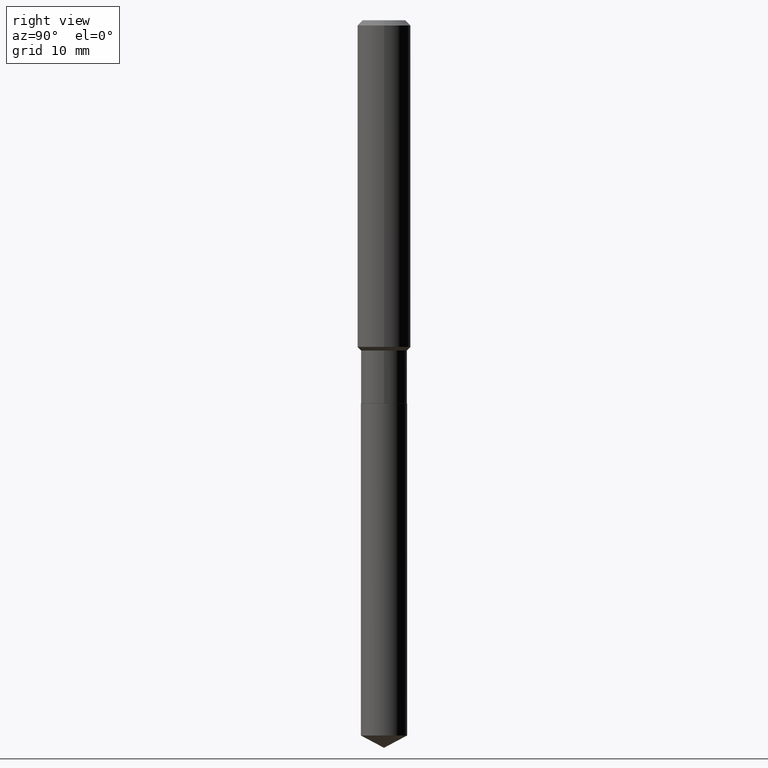
[diagram: clean part render]
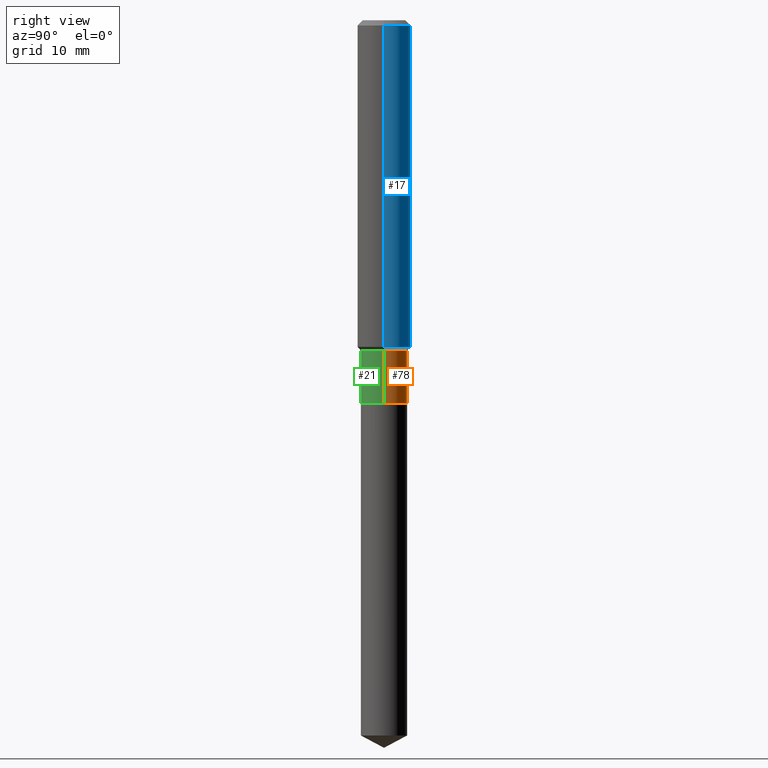
[diagram: same view with three faces highlighted in distinct colors, each labeled with its STEP entity id]
A machine part, right view with three faces highlighted in distinct colors.
Their STEP definitions:

[orange] entity #78 — the highlighted cylindrical surface (edge-blend (fillet) strip) has radius 2.5997 mm, axis along (-0, 0, 1).
#7 = CARTESIAN_POINT ( 'NONE',  ( 4.157786064275969447E-29, -5.936216572301116605E-15, -1.700200000000000156 ) ) ;
#11 = CARTESIAN_POINT ( 'NONE',  ( 0.1023499999999999827, -7.147062300611892976E-16, 4.990766930027139796E-30 ) ) ;
#38 = CIRCLE ( 'NONE', #410, 0.1023499999999999688 ) ;
#39 = VERTEX_POINT ( 'NONE', #246 ) ;
#43 = DIRECTION ( 'NONE',  ( -2.445468806185136877E-29, 3.491481338843145188E-15, 1.000000000000000000 ) ) ;
#48 = DIRECTION ( 'NONE',  ( 1.000000000000000000, -6.982962677686266711E-15, 4.876176775795936353E-29 ) ) ;
#78 = ADVANCED_FACE ( 'NONE', ( #418 ), #381, .T. ) ;
#96 = EDGE_CURVE ( 'NONE', #328, #334, #207, .T. ) ;
#129 = EDGE_CURVE ( 'NONE', #328, #408, #484, .T. ) ;
#136 = DIRECTION ( 'NONE',  ( -2.445468806185136597E-29, 3.491481338843145583E-15, 1.000000000000000000 ) ) ;
#150 = CARTESIAN_POINT ( 'NONE',  ( 0.1023499999999999688, -5.830773835868049900E-15, -1.465300000000000047 ) ) ;
#152 = VECTOR ( 'NONE', #311, 39.37007874015748143 ) ;
#156 = ORIENTED_EDGE ( 'NONE', *, *, #194, .F. ) ;
#165 = LINE ( 'NONE', #419, #286 ) ;
#166 = AXIS2_PLACEMENT_3D ( 'NONE', #7, #464, #412 ) ;
#194 = EDGE_CURVE ( 'NONE', #334, #39, #38, .T. ) ;
#203 = CARTESIAN_POINT ( 'NONE',  ( 0.000000000000000000, 0.000000000000000000, 0.000000000000000000 ) ) ;
#207 = LINE ( 'NONE', #11, #152 ) ;
#236 = ORIENTED_EDGE ( 'NONE', *, *, #438, .T. ) ;
#246 = CARTESIAN_POINT ( 'NONE',  ( -0.1023499999999999688, -4.798901599003526335E-15, -1.465300000000000047 ) ) ;
#286 = VECTOR ( 'NONE', #43, 39.37007874015748143 ) ;
#311 = DIRECTION ( 'NONE',  ( -2.445468806185136877E-29, 3.491481338843145188E-15, 1.000000000000000000 ) ) ;
#315 = DIRECTION ( 'NONE',  ( -2.445468806185136597E-29, 3.491481338843145583E-15, 1.000000000000000000 ) ) ;
#328 = VERTEX_POINT ( 'NONE', #405 ) ;
#334 = VERTEX_POINT ( 'NONE', #150 ) ;
#355 = EDGE_LOOP ( 'NONE', ( #440, #236, #156, #488 ) ) ;
#381 = CYLINDRICAL_SURFACE ( 'NONE', #433, 0.1023499999999999827 ) ;
#405 = CARTESIAN_POINT ( 'NONE',  ( 0.1023499999999999965, -6.650922802362306198E-15, -1.700200000000000156 ) ) ;
#408 = VERTEX_POINT ( 'NONE', #467 ) ;
#410 = AXIS2_PLACEMENT_3D ( 'NONE', #429, #136, #431 ) ;
#412 = DIRECTION ( 'NONE',  ( 1.000000000000000000, -6.982962677686270655E-15, 0.000000000000000000 ) ) ;
#418 = FACE_OUTER_BOUND ( 'NONE', #355, .T. ) ;
#419 = CARTESIAN_POINT ( 'NONE',  ( -0.1023499999999999827, 7.272404900504624170E-16, -5.034530064875895945E-30 ) ) ;
#429 = CARTESIAN_POINT ( 'NONE',  ( 3.583345441703080840E-29, -5.116067605806861096E-15, -1.465300000000000047 ) ) ;
#431 = DIRECTION ( 'NONE',  ( 1.000000000000000000, -6.982962677686262766E-15, 0.000000000000000000 ) ) ;
#433 = AXIS2_PLACEMENT_3D ( 'NONE', #203, #315, #48 ) ;
#438 = EDGE_CURVE ( 'NONE', #408, #39, #165, .T. ) ;
#440 = ORIENTED_EDGE ( 'NONE', *, *, #129, .T. ) ;
#464 = DIRECTION ( 'NONE',  ( -2.445468806185136597E-29, 3.491481338843145583E-15, 1.000000000000000000 ) ) ;
#467 = CARTESIAN_POINT ( 'NONE',  ( -0.1023499999999999965, -4.798901599003526335E-15, -1.700200000000000156 ) ) ;
#484 = CIRCLE ( 'NONE', #166, 0.1023499999999999965 ) ;
#488 = ORIENTED_EDGE ( 'NONE', *, *, #96, .F. ) ;

[blue] entity #17 — the highlighted cylindrical surface (edge-blend (fillet) strip) has radius 2.9997 mm, axis along (-0, 0, 1).
#9 = CARTESIAN_POINT ( 'NONE',  ( 0.1180999999999999966, -9.071566814582237199E-16, -0.02362000000000014088 ) ) ;
#17 = ADVANCED_FACE ( 'NONE', ( #379 ), #455, .T. ) ;
#34 = EDGE_CURVE ( 'NONE', #344, #235, #471, .T. ) ;
#37 = ORIENTED_EDGE ( 'NONE', *, *, #50, .F. ) ;
#50 = EDGE_CURVE ( 'NONE', #344, #430, #53, .T. ) ;
#53 = LINE ( 'NONE', #338, #85 ) ;
#83 = DIRECTION ( 'NONE',  ( 1.000000000000000000, -6.982962677686266711E-15, 4.876176775795936353E-29 ) ) ;
#85 = VECTOR ( 'NONE', #86, 39.37007874015748143 ) ;
#86 = DIRECTION ( 'NONE',  ( -2.445468806185136877E-29, 3.491481338843145188E-15, 1.000000000000000000 ) ) ;
#93 = DIRECTION ( 'NONE',  ( 1.000000000000000000, -6.982962677686263555E-15, 0.000000000000000000 ) ) ;
#95 = VECTOR ( 'NONE', #348, 39.37007874015748143 ) ;
#102 = AXIS2_PLACEMENT_3D ( 'NONE', #423, #168, #83 ) ;
#104 = CARTESIAN_POINT ( 'NONE',  ( 5.776197320209327532E-31, -8.246878922347559293E-17, -0.02362000000000014088 ) ) ;
#148 = CARTESIAN_POINT ( 'NONE',  ( -0.1180999999999999966, -1.732621811039098637E-15, -0.02362000000000014088 ) ) ;
#167 = AXIS2_PLACEMENT_3D ( 'NONE', #271, #276, #93 ) ;
#168 = DIRECTION ( 'NONE',  ( -2.445468806185136597E-29, 3.491481338843145583E-15, 1.000000000000000000 ) ) ;
#171 = CARTESIAN_POINT ( 'NONE',  ( -0.1181000000000000799, 8.391509709326788873E-16, -5.809262341591047988E-30 ) ) ;
#211 = DIRECTION ( 'NONE',  ( -2.445468806185136597E-29, 3.491481338843145583E-15, 1.000000000000000000 ) ) ;
#235 = VERTEX_POINT ( 'NONE', #256 ) ;
#256 = CARTESIAN_POINT ( 'NONE',  ( -0.1181000000000001632, -4.221925803787401987E-15, -1.449549999999999894 ) ) ;
#266 = ORIENTED_EDGE ( 'NONE', *, *, #34, .T. ) ;
#271 = CARTESIAN_POINT ( 'NONE',  ( 3.544829308005664880E-29, -5.061076774720080972E-15, -1.449549999999999894 ) ) ;
#276 = DIRECTION ( 'NONE',  ( -2.445468806185136597E-29, 3.491481338843145583E-15, 1.000000000000000000 ) ) ;
#290 = CARTESIAN_POINT ( 'NONE',  ( 0.1181000000000001632, -5.885764666954829235E-15, -1.449549999999999894 ) ) ;
#292 = EDGE_CURVE ( 'NONE', #430, #300, #416, .T. ) ;
#300 = VERTEX_POINT ( 'NONE', #148 ) ;
#316 = DIRECTION ( 'NONE',  ( 1.000000000000000000, -6.982962677686266711E-15, 0.000000000000000000 ) ) ;
#318 = AXIS2_PLACEMENT_3D ( 'NONE', #104, #211, #316 ) ;
#338 = CARTESIAN_POINT ( 'NONE',  ( 0.1181000000000000799, -8.246878922347486570E-16, 5.758764772215004644E-30 ) ) ;
#344 = VERTEX_POINT ( 'NONE', #290 ) ;
#348 = DIRECTION ( 'NONE',  ( -2.445468806185136877E-29, 3.491481338843145188E-15, 1.000000000000000000 ) ) ;
#373 = ORIENTED_EDGE ( 'NONE', *, *, #292, .F. ) ;
#379 = FACE_OUTER_BOUND ( 'NONE', #427, .T. ) ;
#380 = LINE ( 'NONE', #171, #95 ) ;
#397 = ORIENTED_EDGE ( 'NONE', *, *, #398, .T. ) ;
#398 = EDGE_CURVE ( 'NONE', #235, #300, #380, .T. ) ;
#416 = CIRCLE ( 'NONE', #318, 0.1180999999999999966 ) ;
#423 = CARTESIAN_POINT ( 'NONE',  ( 0.000000000000000000, 0.000000000000000000, 0.000000000000000000 ) ) ;
#427 = EDGE_LOOP ( 'NONE', ( #266, #397, #373, #37 ) ) ;
#430 = VERTEX_POINT ( 'NONE', #9 ) ;
#455 = CYLINDRICAL_SURFACE ( 'NONE', #102, 0.1181000000000000799 ) ;
#471 = CIRCLE ( 'NONE', #167, 0.1181000000000001632 ) ;

[green] entity #21 — the highlighted cylindrical surface (edge-blend (fillet) strip) has radius 2.5997 mm, axis along (-0, 0, 1).
#11 = CARTESIAN_POINT ( 'NONE',  ( 0.1023499999999999827, -7.147062300611892976E-16, 4.990766930027139796E-30 ) ) ;
#21 = ADVANCED_FACE ( 'NONE', ( #210 ), #347, .T. ) ;
#39 = VERTEX_POINT ( 'NONE', #246 ) ;
#43 = DIRECTION ( 'NONE',  ( -2.445468806185136877E-29, 3.491481338843145188E-15, 1.000000000000000000 ) ) ;
#46 = DIRECTION ( 'NONE',  ( 1.000000000000000000, -6.982962677686266711E-15, 4.876176775795936353E-29 ) ) ;
#65 = CIRCLE ( 'NONE', #88, 0.1023499999999999688 ) ;
#77 = ORIENTED_EDGE ( 'NONE', *, *, #353, .F. ) ;
#88 = AXIS2_PLACEMENT_3D ( 'NONE', #223, #155, #110 ) ;
#96 = EDGE_CURVE ( 'NONE', #328, #334, #207, .T. ) ;
#103 = CIRCLE ( 'NONE', #214, 0.1023499999999999965 ) ;
#110 = DIRECTION ( 'NONE',  ( 1.000000000000000000, -6.982962677686262766E-15, 0.000000000000000000 ) ) ;
#111 = ORIENTED_EDGE ( 'NONE', *, *, #428, .T. ) ;
#122 = DIRECTION ( 'NONE',  ( -2.445468806185136597E-29, 3.491481338843145583E-15, 1.000000000000000000 ) ) ;
#135 = DIRECTION ( 'NONE',  ( 1.000000000000000000, -6.982962677686270655E-15, 0.000000000000000000 ) ) ;
#150 = CARTESIAN_POINT ( 'NONE',  ( 0.1023499999999999688, -5.830773835868049900E-15, -1.465300000000000047 ) ) ;
#152 = VECTOR ( 'NONE', #311, 39.37007874015748143 ) ;
#155 = DIRECTION ( 'NONE',  ( -2.445468806185136597E-29, 3.491481338843145583E-15, 1.000000000000000000 ) ) ;
#158 = ORIENTED_EDGE ( 'NONE', *, *, #438, .F. ) ;
#165 = LINE ( 'NONE', #419, #286 ) ;
#176 = AXIS2_PLACEMENT_3D ( 'NONE', #460, #122, #46 ) ;
#191 = EDGE_LOOP ( 'NONE', ( #158, #111, #415, #77 ) ) ;
#207 = LINE ( 'NONE', #11, #152 ) ;
#210 = FACE_OUTER_BOUND ( 'NONE', #191, .T. ) ;
#214 = AXIS2_PLACEMENT_3D ( 'NONE', #339, #272, #135 ) ;
#223 = CARTESIAN_POINT ( 'NONE',  ( 3.583345441703080840E-29, -5.116067605806861096E-15, -1.465300000000000047 ) ) ;
#246 = CARTESIAN_POINT ( 'NONE',  ( -0.1023499999999999688, -4.798901599003526335E-15, -1.465300000000000047 ) ) ;
#272 = DIRECTION ( 'NONE',  ( -2.445468806185136597E-29, 3.491481338843145583E-15, 1.000000000000000000 ) ) ;
#286 = VECTOR ( 'NONE', #43, 39.37007874015748143 ) ;
#311 = DIRECTION ( 'NONE',  ( -2.445468806185136877E-29, 3.491481338843145188E-15, 1.000000000000000000 ) ) ;
#328 = VERTEX_POINT ( 'NONE', #405 ) ;
#334 = VERTEX_POINT ( 'NONE', #150 ) ;
#339 = CARTESIAN_POINT ( 'NONE',  ( 4.157786064275969447E-29, -5.936216572301116605E-15, -1.700200000000000156 ) ) ;
#347 = CYLINDRICAL_SURFACE ( 'NONE', #176, 0.1023499999999999827 ) ;
#353 = EDGE_CURVE ( 'NONE', #39, #334, #65, .T. ) ;
#405 = CARTESIAN_POINT ( 'NONE',  ( 0.1023499999999999965, -6.650922802362306198E-15, -1.700200000000000156 ) ) ;
#408 = VERTEX_POINT ( 'NONE', #467 ) ;
#415 = ORIENTED_EDGE ( 'NONE', *, *, #96, .T. ) ;
#419 = CARTESIAN_POINT ( 'NONE',  ( -0.1023499999999999827, 7.272404900504624170E-16, -5.034530064875895945E-30 ) ) ;
#428 = EDGE_CURVE ( 'NONE', #408, #328, #103, .T. ) ;
#438 = EDGE_CURVE ( 'NONE', #408, #39, #165, .T. ) ;
#460 = CARTESIAN_POINT ( 'NONE',  ( 0.000000000000000000, 0.000000000000000000, 0.000000000000000000 ) ) ;
#467 = CARTESIAN_POINT ( 'NONE',  ( -0.1023499999999999965, -4.798901599003526335E-15, -1.700200000000000156 ) ) ;